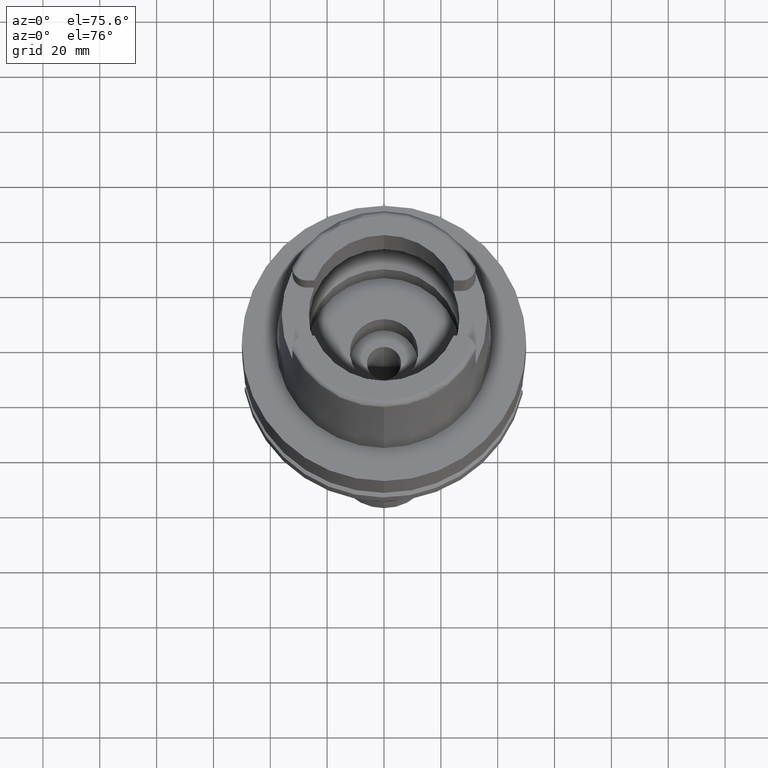
[diagram: clean part render]
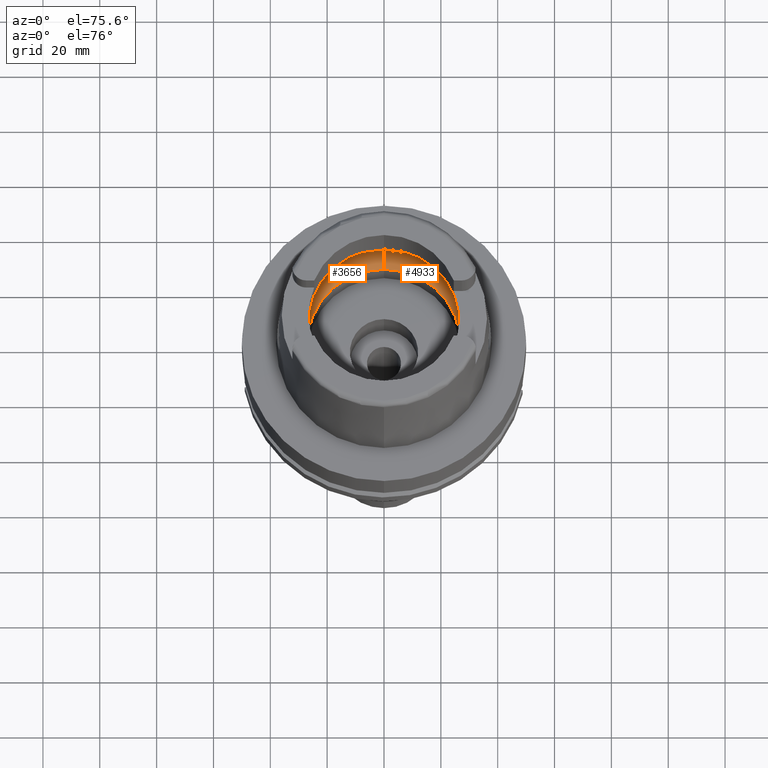
[diagram: same view with one multi-face feature highlighted, each face labeled with its STEP entity id]
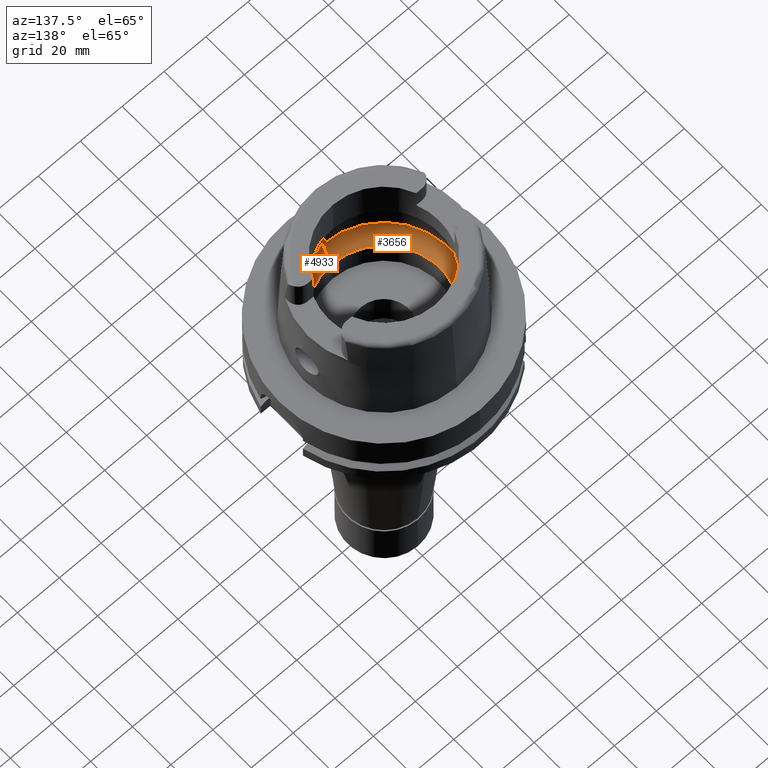
[diagram: same view with one multi-face feature highlighted, each face labeled with its STEP entity id]
A machine part, auxiliary view. The highlighted faces form ONE feature: a constant-radius fillet chain: 2 tangent blend faces with common blend radius 12 mm. The faces share edges in the B-rep.
A second angle (auxiliary view) of the same feature is appended — it is thin or edge-on in the first view.
Their STEP definitions:
[1] entity #3656 (Torus):
#50 = TOROIDAL_SURFACE ( 'NONE', #776, 19.50000000000000000, 12.00000000000000000 ) ;
#115 = DIRECTION ( 'NONE',  ( -1.000000000000000000, 0.0000000000000000000, 0.0000000000000000000 ) ) ;
#147 = CARTESIAN_POINT ( 'NONE',  ( 0.0000000000000000000, -19.50000000000000000, 9.496624327025999790 ) ) ;
#154 = CARTESIAN_POINT ( 'NONE',  ( -31.40918884336000616, -2.390158196043999705, 9.496624327025999790 ) ) ;
#264 = DIRECTION ( 'NONE',  ( 1.000000000000000000, 0.0000000000000000000, 0.0000000000000000000 ) ) ;
#366 = CIRCLE ( 'NONE', #4343, 31.50000000000000000 ) ;
#405 = CARTESIAN_POINT ( 'NONE',  ( -31.42817526838999953, 2.140656631636999929, 9.388263887083001080 ) ) ;
#482 = VERTEX_POINT ( 'NONE', #898 ) ;
#497 = AXIS2_PLACEMENT_3D ( 'NONE', #147, #115, #2632 ) ;
#517 = B_SPLINE_CURVE_WITH_KNOTS ( 'NONE', 3,
 ( #1678, #1255, #833, #1281, #405, #2128 ),
 .UNSPECIFIED., .F., .F.,
 ( 4, 1, 1, 4 ),
 ( 0.0000000000000000000, 0.3333333333333000081, 0.6666666666667000474, 1.000000000000000000 ),
 .UNSPECIFIED. ) ;
#645 = ORIENTED_EDGE ( 'NONE', *, *, #4824, .F. ) ;
#776 = AXIS2_PLACEMENT_3D ( 'NONE', #930, #2617, #2274 ) ;
#822 = EDGE_CURVE ( 'NONE', #2250, #2993, #366, .T. ) ;
#833 = CARTESIAN_POINT ( 'NONE',  ( -31.48416661469000033, 0.8216269012393999649, 9.037606318336999678 ) ) ;
#898 = CARTESIAN_POINT ( 'NONE',  ( 0.0000000000000000000, 26.89999999999999858, 0.04993178413029000090 ) ) ;
#922 = CARTESIAN_POINT ( 'NONE',  ( -31.40918884336000616, 2.390158196043999705, 9.496624327025999790 ) ) ;
#930 = CARTESIAN_POINT ( 'NONE',  ( 0.0000000000000000000, 0.0000000000000000000, 9.496624327025999790 ) ) ;
#1020 = CARTESIAN_POINT ( 'NONE',  ( 0.0000000000000000000, 0.0000000000000000000, 9.496624327025999790 ) ) ;
#1117 = CARTESIAN_POINT ( 'NONE',  ( -31.40918884336000616, -2.390158196043999705, 9.496624327025999790 ) ) ;
#1161 = CARTESIAN_POINT ( 'NONE',  ( -31.48971910754000447, -0.2740811097498000448, 9.000000000000000000 ) ) ;
#1183 = VERTEX_POINT ( 'NONE', #1533 ) ;
#1255 = CARTESIAN_POINT ( 'NONE',  ( -31.48971910754000447, 0.2740813517951999900, 9.000000000000000000 ) ) ;
#1281 = CARTESIAN_POINT ( 'NONE',  ( -31.45843209623000547, 1.626127188330999784, 9.205189758010000389 ) ) ;
#1404 = EDGE_CURVE ( 'NONE', #1183, #4010, #517, .T. ) ;
#1467 = DIRECTION ( 'NONE',  ( -0.9971171061384286327, 0.07587803796966216541, 0.0000000000000000000 ) ) ;
#1533 = CARTESIAN_POINT ( 'NONE',  ( -31.48971910754000447, 0.0000000000000000000, 9.000000000000000000 ) ) ;
#1604 = EDGE_CURVE ( 'NONE', #2993, #1183, #2880, .T. ) ;
#1678 = CARTESIAN_POINT ( 'NONE',  ( -31.48971910754000447, 0.0000000000000000000, 9.000000000000000000 ) ) ;
#1762 = VERTEX_POINT ( 'NONE', #4052 ) ;
#1880 = CARTESIAN_POINT ( 'NONE',  ( -31.42817545703999826, -2.140654152532999621, 9.388262810390001434 ) ) ;
#1952 = DIRECTION ( 'NONE',  ( 0.0000000000000000000, -1.000000000000000000, 0.0000000000000000000 ) ) ;
#2050 = EDGE_CURVE ( 'NONE', #482, #1762, #3210, .T. ) ;
#2079 = EDGE_CURVE ( 'NONE', #482, #3471, #4115, .T. ) ;
#2128 = CARTESIAN_POINT ( 'NONE',  ( -31.40918884336000616, 2.390158196043999705, 9.496624327025999790 ) ) ;
#2137 = CARTESIAN_POINT ( 'NONE',  ( 0.0000000000000000000, 31.50000000000000000, 9.496624327025999790 ) ) ;
#2250 = VERTEX_POINT ( 'NONE', #5521 ) ;
#2274 = DIRECTION ( 'NONE',  ( 0.0000000000000000000, 1.000000000000000000, 0.0000000000000000000 ) ) ;
#2343 = DIRECTION ( 'NONE',  ( 0.0000000000000000000, 0.0000000000000000000, -1.000000000000000000 ) ) ;
#2612 = ORIENTED_EDGE ( 'NONE', *, *, #2079, .T. ) ;
#2617 = DIRECTION ( 'NONE',  ( 0.0000000000000000000, 0.0000000000000000000, 1.000000000000000000 ) ) ;
#2632 = DIRECTION ( 'NONE',  ( 0.0000000000000000000, -0.6166666666667049990, -0.7872243785746061429 ) ) ;
#2804 = CARTESIAN_POINT ( 'NONE',  ( 0.0000000000000000000, 0.0000000000000000000, 9.496624327025999790 ) ) ;
#2880 = B_SPLINE_CURVE_WITH_KNOTS ( 'NONE', 3,
 ( #154, #1880, #3608, #5332, #1161, #3395 ),
 .UNSPECIFIED., .F., .F.,
 ( 4, 1, 1, 4 ),
 ( 0.0000000000000000000, 0.3333333333333000081, 0.6666666666667000474, 1.000000000000000000 ),
 .UNSPECIFIED. ) ;
#2937 = AXIS2_PLACEMENT_3D ( 'NONE', #4146, #5388, #4196 ) ;
#2993 = VERTEX_POINT ( 'NONE', #1117 ) ;
#3051 = ORIENTED_EDGE ( 'NONE', *, *, #1404, .F. ) ;
#3086 = ORIENTED_EDGE ( 'NONE', *, *, #4514, .F. ) ;
#3210 = CIRCLE ( 'NONE', #2937, 26.89999999999999858 ) ;
#3395 = CARTESIAN_POINT ( 'NONE',  ( -31.48971910754000447, 0.0000000000000000000, 9.000000000000000000 ) ) ;
#3471 = VERTEX_POINT ( 'NONE', #2137 ) ;
#3498 = ORIENTED_EDGE ( 'NONE', *, *, #822, .F. ) ;
#3608 = CARTESIAN_POINT ( 'NONE',  ( -31.45843235400999660, -1.626121130666000170, 9.205188134635001518 ) ) ;
#3656 = ADVANCED_FACE ( 'NONE', ( #4372 ), #50, .F. ) ;
#3661 = AXIS2_PLACEMENT_3D ( 'NONE', #4170, #264, #4985 ) ;
#4010 = VERTEX_POINT ( 'NONE', #922 ) ;
#4052 = CARTESIAN_POINT ( 'NONE',  ( 0.0000000000000000000, -26.89999999999999858, 0.04993178413028000195 ) ) ;
#4115 = CIRCLE ( 'NONE', #3661, 11.99999999999999822 ) ;
#4146 = CARTESIAN_POINT ( 'NONE',  ( 0.0000000000000000000, 0.0000000000000000000, 0.04993178413028000195 ) ) ;
#4170 = CARTESIAN_POINT ( 'NONE',  ( 0.0000000000000000000, 19.50000000000000000, 9.496624327025999790 ) ) ;
#4196 = DIRECTION ( 'NONE',  ( 0.0000000000000000000, 1.000000000000000000, 0.0000000000000000000 ) ) ;
#4343 = AXIS2_PLACEMENT_3D ( 'NONE', #2804, #2343, #1952 ) ;
#4372 = FACE_OUTER_BOUND ( 'NONE', #4403, .T. ) ;
#4403 = EDGE_LOOP ( 'NONE', ( #3498, #645, #4671, #2612, #3086, #3051, #5306 ) ) ;
#4478 = AXIS2_PLACEMENT_3D ( 'NONE', #1020, #5345, #1467 ) ;
#4514 = EDGE_CURVE ( 'NONE', #4010, #3471, #5300, .T. ) ;
#4671 = ORIENTED_EDGE ( 'NONE', *, *, #2050, .F. ) ;
#4824 = EDGE_CURVE ( 'NONE', #1762, #2250, #4839, .T. ) ;
#4839 = CIRCLE ( 'NONE', #497, 11.99999999999999822 ) ;
#4985 = DIRECTION ( 'NONE',  ( 0.0000000000000000000, 0.6166666666667049990, -0.7872243785746061429 ) ) ;
#5300 = CIRCLE ( 'NONE', #4478, 31.50000000000001421 ) ;
#5306 = ORIENTED_EDGE ( 'NONE', *, *, #1604, .F. ) ;
#5332 = CARTESIAN_POINT ( 'NONE',  ( -31.48416659375000037, -0.8216262390445000507, 9.037606438216000626 ) ) ;
#5345 = DIRECTION ( 'NONE',  ( 0.0000000000000000000, 0.0000000000000000000, -1.000000000000000000 ) ) ;
#5388 = DIRECTION ( 'NONE',  ( 0.0000000000000000000, 0.0000000000000000000, 1.000000000000000000 ) ) ;
#5521 = CARTESIAN_POINT ( 'NONE',  ( 0.0000000000000000000, -31.50000000000000000, 9.496624327025999790 ) ) ;
[2] entity #4933 (Torus):
#30 = FACE_OUTER_BOUND ( 'NONE', #1587, .T. ) ;
#68 = DIRECTION ( 'NONE',  ( 0.0000000000000000000, 0.0000000000000000000, -1.000000000000000000 ) ) ;
#99 = VERTEX_POINT ( 'NONE', #3219 ) ;
#115 = DIRECTION ( 'NONE',  ( -1.000000000000000000, 0.0000000000000000000, 0.0000000000000000000 ) ) ;
#147 = CARTESIAN_POINT ( 'NONE',  ( 0.0000000000000000000, -19.50000000000000000, 9.496624327025999790 ) ) ;
#224 = VERTEX_POINT ( 'NONE', #3356 ) ;
#264 = DIRECTION ( 'NONE',  ( 1.000000000000000000, 0.0000000000000000000, 0.0000000000000000000 ) ) ;
#402 = CARTESIAN_POINT ( 'NONE',  ( 31.48416663622000300, 0.8216256622719000369, 9.037606172252001357 ) ) ;
#482 = VERTEX_POINT ( 'NONE', #898 ) ;
#497 = AXIS2_PLACEMENT_3D ( 'NONE', #147, #115, #2632 ) ;
#619 = ORIENTED_EDGE ( 'NONE', *, *, #2228, .F. ) ;
#654 = ORIENTED_EDGE ( 'NONE', *, *, #2079, .F. ) ;
#715 = B_SPLINE_CURVE_WITH_KNOTS ( 'NONE', 3,
 ( #2518, #5182, #5579, #402, #3064, #1700 ),
 .UNSPECIFIED., .F., .F.,
 ( 4, 1, 1, 4 ),
 ( 0.0000000000000000000, 0.3333333333333000081, 0.6666666666667000474, 1.000000000000000000 ),
 .UNSPECIFIED. ) ;
#749 = CARTESIAN_POINT ( 'NONE',  ( 31.48971910754000447, 0.0000000000000000000, 9.000000000000000000 ) ) ;
#898 = CARTESIAN_POINT ( 'NONE',  ( 0.0000000000000000000, 26.89999999999999858, 0.04993178413029000090 ) ) ;
#934 = CARTESIAN_POINT ( 'NONE',  ( 0.0000000000000000000, 0.0000000000000000000, 0.04993178413028000195 ) ) ;
#1006 = B_SPLINE_CURVE_WITH_KNOTS ( 'NONE', 3,
 ( #749, #4594, #4570, #2468, #3272, #4205 ),
 .UNSPECIFIED., .F., .F.,
 ( 4, 1, 1, 4 ),
 ( 0.0000000000000000000, 0.3333333333333000081, 0.6666666666667000474, 1.000000000000000000 ),
 .UNSPECIFIED. ) ;
#1039 = AXIS2_PLACEMENT_3D ( 'NONE', #934, #2654, #5262 ) ;
#1446 = DIRECTION ( 'NONE',  ( 0.0000000000000000000, 0.0000000000000000000, 1.000000000000000000 ) ) ;
#1587 = EDGE_LOOP ( 'NONE', ( #619, #2334, #654, #3847, #5085, #2318, #4324 ) ) ;
#1646 = EDGE_CURVE ( 'NONE', #1762, #482, #4914, .T. ) ;
#1700 = CARTESIAN_POINT ( 'NONE',  ( 31.48971910754000447, 0.0000000000000000000, 9.000000000000000000 ) ) ;
#1762 = VERTEX_POINT ( 'NONE', #4052 ) ;
#1878 = CARTESIAN_POINT ( 'NONE',  ( 0.0000000000000000000, 0.0000000000000000000, 9.496624327025999790 ) ) ;
#2076 = DIRECTION ( 'NONE',  ( 0.0000000000000000000, 0.0000000000000000000, -1.000000000000000000 ) ) ;
#2079 = EDGE_CURVE ( 'NONE', #482, #3471, #4115, .T. ) ;
#2137 = CARTESIAN_POINT ( 'NONE',  ( 0.0000000000000000000, 31.50000000000000000, 9.496624327025999790 ) ) ;
#2228 = EDGE_CURVE ( 'NONE', #99, #2366, #715, .T. ) ;
#2250 = VERTEX_POINT ( 'NONE', #5521 ) ;
#2318 = ORIENTED_EDGE ( 'NONE', *, *, #5101, .F. ) ;
#2334 = ORIENTED_EDGE ( 'NONE', *, *, #2505, .F. ) ;
#2366 = VERTEX_POINT ( 'NONE', #5130 ) ;
#2468 = CARTESIAN_POINT ( 'NONE',  ( 31.45843229728999901, -1.626122314408000147, 9.205188491873000700 ) ) ;
#2505 = EDGE_CURVE ( 'NONE', #3471, #99, #4473, .T. ) ;
#2518 = CARTESIAN_POINT ( 'NONE',  ( 31.40918884336000616, 2.390158196043999705, 9.496624327025999790 ) ) ;
#2632 = DIRECTION ( 'NONE',  ( 0.0000000000000000000, -0.6166666666667049990, -0.7872243785746061429 ) ) ;
#2654 = DIRECTION ( 'NONE',  ( 0.0000000000000000000, 0.0000000000000000000, 1.000000000000000000 ) ) ;
#2863 = AXIS2_PLACEMENT_3D ( 'NONE', #2967, #2076, #3810 ) ;
#2950 = AXIS2_PLACEMENT_3D ( 'NONE', #3487, #1446, #3176 ) ;
#2967 = CARTESIAN_POINT ( 'NONE',  ( 0.0000000000000000000, 0.0000000000000000000, 9.496624327025999790 ) ) ;
#3029 = EDGE_CURVE ( 'NONE', #2366, #224, #1006, .T. ) ;
#3064 = CARTESIAN_POINT ( 'NONE',  ( 31.48971910754000447, 0.2740808193429000172, 9.000000000000000000 ) ) ;
#3128 = AXIS2_PLACEMENT_3D ( 'NONE', #1878, #68, #4396 ) ;
#3176 = DIRECTION ( 'NONE',  ( 0.0000000000000000000, 1.000000000000000000, 0.0000000000000000000 ) ) ;
#3219 = CARTESIAN_POINT ( 'NONE',  ( 31.40918884336000616, 2.390158196043999705, 9.496624327025999790 ) ) ;
#3272 = CARTESIAN_POINT ( 'NONE',  ( 31.42817542026000410, -2.140654635826999996, 9.388263020288000860 ) ) ;
#3356 = CARTESIAN_POINT ( 'NONE',  ( 31.40918884336000616, -2.390158196043999705, 9.496624327025999790 ) ) ;
#3471 = VERTEX_POINT ( 'NONE', #2137 ) ;
#3487 = CARTESIAN_POINT ( 'NONE',  ( 0.0000000000000000000, 0.0000000000000000000, 9.496624327025999790 ) ) ;
#3661 = AXIS2_PLACEMENT_3D ( 'NONE', #4170, #264, #4985 ) ;
#3810 = DIRECTION ( 'NONE',  ( 0.9971171061384295209, -0.07587803796965221503, 0.0000000000000000000 ) ) ;
#3847 = ORIENTED_EDGE ( 'NONE', *, *, #1646, .F. ) ;
#4052 = CARTESIAN_POINT ( 'NONE',  ( 0.0000000000000000000, -26.89999999999999858, 0.04993178413028000195 ) ) ;
#4115 = CIRCLE ( 'NONE', #3661, 11.99999999999999822 ) ;
#4170 = CARTESIAN_POINT ( 'NONE',  ( 0.0000000000000000000, 19.50000000000000000, 9.496624327025999790 ) ) ;
#4205 = CARTESIAN_POINT ( 'NONE',  ( 31.40918884336000616, -2.390158196043999705, 9.496624327025999790 ) ) ;
#4324 = ORIENTED_EDGE ( 'NONE', *, *, #3029, .F. ) ;
#4396 = DIRECTION ( 'NONE',  ( 0.0000000000000000000, 1.000000000000000000, 0.0000000000000000000 ) ) ;
#4473 = CIRCLE ( 'NONE', #3128, 31.50000000000000000 ) ;
#4489 = CIRCLE ( 'NONE', #2863, 31.49999999999998934 ) ;
#4570 = CARTESIAN_POINT ( 'NONE',  ( 31.48416657243999950, -0.8216274657312000462, 9.037606582851999804 ) ) ;
#4594 = CARTESIAN_POINT ( 'NONE',  ( 31.48971910754000447, -0.2740816369240999806, 9.000000000000000000 ) ) ;
#4824 = EDGE_CURVE ( 'NONE', #1762, #2250, #4839, .T. ) ;
#4839 = CIRCLE ( 'NONE', #497, 11.99999999999999822 ) ;
#4914 = CIRCLE ( 'NONE', #1039, 26.89999999999999858 ) ;
#4933 = ADVANCED_FACE ( 'NONE', ( #30 ), #5386, .F. ) ;
#4985 = DIRECTION ( 'NONE',  ( 0.0000000000000000000, 0.6166666666667049990, -0.7872243785746061429 ) ) ;
#5085 = ORIENTED_EDGE ( 'NONE', *, *, #4824, .T. ) ;
#5101 = EDGE_CURVE ( 'NONE', #224, #2250, #4489, .T. ) ;
#5130 = CARTESIAN_POINT ( 'NONE',  ( 31.48971910754000447, 0.0000000000000000000, 9.000000000000000000 ) ) ;
#5182 = CARTESIAN_POINT ( 'NONE',  ( 31.42817530553000083, 2.140656143518000487, 9.388263675090000149 ) ) ;
#5262 = DIRECTION ( 'NONE',  ( 0.0000000000000000000, -1.000000000000000000, 0.0000000000000000000 ) ) ;
#5386 = TOROIDAL_SURFACE ( 'NONE', #2950, 19.50000000000000000, 12.00000000000000000 ) ;
#5521 = CARTESIAN_POINT ( 'NONE',  ( 0.0000000000000000000, -31.50000000000000000, 9.496624327025999790 ) ) ;
#5579 = CARTESIAN_POINT ( 'NONE',  ( 31.45843215351000310, 1.626125992769999806, 9.205189397203000112 ) ) ;